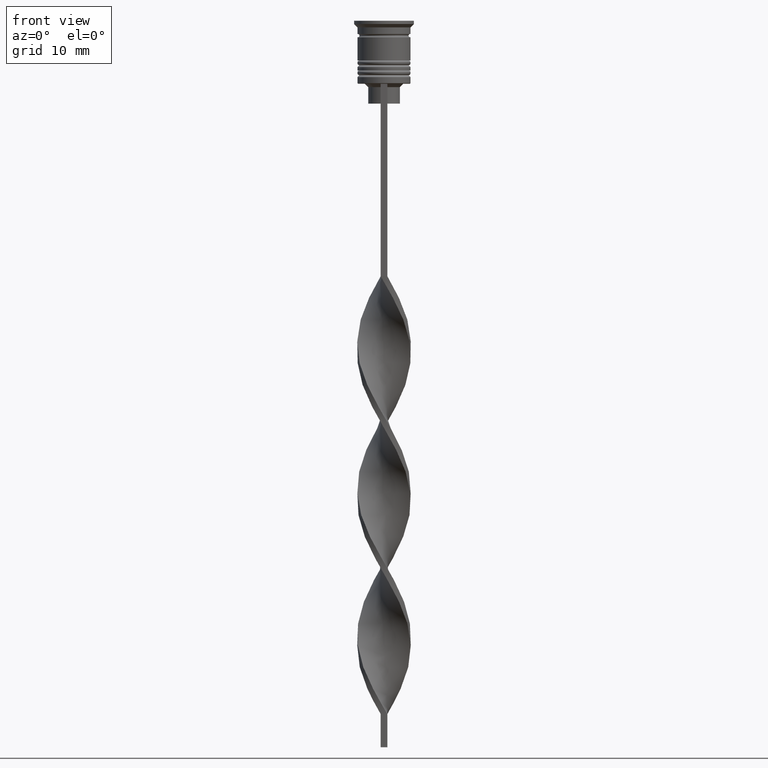
[diagram: clean part render]
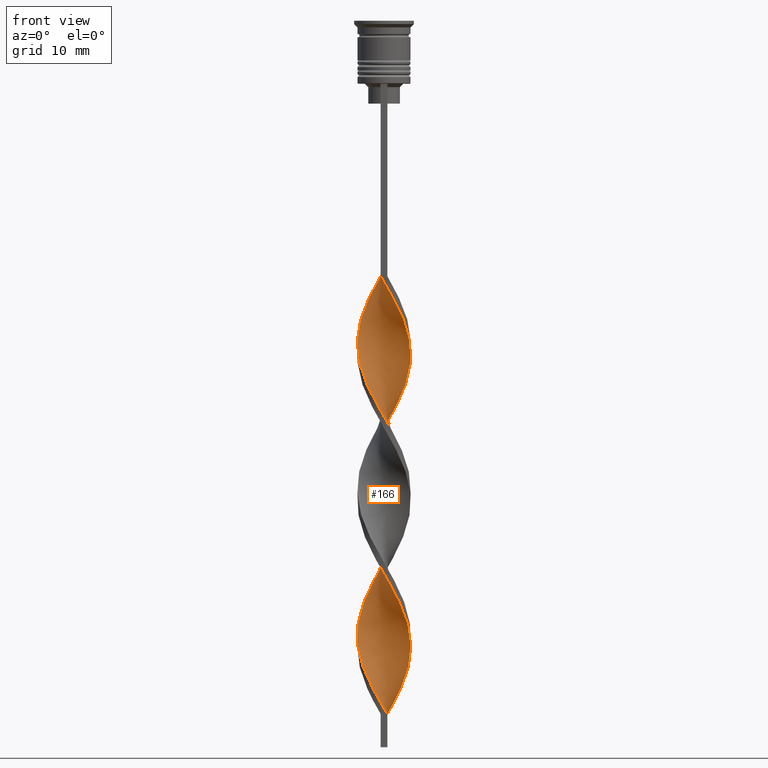
[diagram: same view with one face highlighted and labeled with its STEP entity id]
A machine part, front view. The second image highlights one B-rep face of the part: STEP entity #166.
In plain terms, the highlighted face is a freeform B-spline surface patch.
Its self-contained STEP definition (entity closure, byte-faithful):
#6 = CARTESIAN_POINT ( 'NONE',  ( 0.01431206711095876771, 4.060710991611130360, -61.34615384615383959 ) ) ;
#12 = CARTESIAN_POINT ( 'NONE',  ( 3.910567156264555422, 0.9785011580703162348, -72.34615384615383959 ) ) ;
#14 = CARTESIAN_POINT ( 'NONE',  ( -1.874433786711570127, 3.602232165184604540, -64.73076923076922640 ) ) ;
#16 = CARTESIAN_POINT ( 'NONE',  ( 2.278235258877631786, 3.325604321804800811, -77.42307692307693401 ) ) ;
#28 = CARTESIAN_POINT ( 'NONE',  ( -1.416164675348469792, -3.774185688634723146, -101.1153846153846132 ) ) ;
#31 = CARTESIAN_POINT ( 'NONE',  ( 1.899779198837473038, 3.588929866731988660, -57.96153846153846700 ) ) ;
#33 = CARTESIAN_POINT ( 'NONE',  ( 1.874433786711571459, 3.602232165184603652, -78.26923076923075939 ) ) ;
#54 = CARTESIAN_POINT ( 'NONE',  ( -0.9578955639853689030, -3.946139212084843972, -101.9615384615384670 ) ) ;
#58 = CARTESIAN_POINT ( 'NONE',  ( -3.575967836940203703, 1.860767053977795404, -89.26923076923077360 ) ) ;
#74 = CARTESIAN_POINT ( 'NONE',  ( 2.301620701001679148, 3.309462516590954806, -57.11538461538461320 ) ) ;
#76 = CARTESIAN_POINT ( 'NONE',  ( 3.562762527220391551, 1.885927669512849514, -74.03846153846153300 ) ) ;
#80 = CARTESIAN_POINT ( 'NONE',  ( -3.333769449374405447, -2.318525361317902433, -96.88461538461538680 ) ) ;
#99 = CARTESIAN_POINT ( 'NONE',  ( -0.5000000000000000000, 4.000000000000000000, -82.50000000000000000 ) ) ;
#155 = CARTESIAN_POINT ( 'NONE',  ( -0.5000000000000000000, -4.000000000000000000, -38.50000000000000000 ) ) ;
#156 = CARTESIAN_POINT ( 'NONE',  ( -0.01431206711095789862, -4.060710991611130360, -39.34615384615384670 ) ) ;
#166 = ADVANCED_FACE ( 'NONE', ( #1179 ), #2116, .T. ) ;
#178 = CARTESIAN_POINT ( 'NONE',  ( 4.032828965577023084, 0.4752569063773717239, -51.19230769230768630 ) ) ;
#192 =( BOUNDED_CURVE ( )  B_SPLINE_CURVE ( 2, ( #2807, #2496, #524, #2444, #2790, #1962, #824, #1384, #3615, #3083, #1920, #1085, #539, #2456, #1683, #1317, #2218, #1614, #1037, #3340, #1071, #3027, #2741, #3581, #205, #2513, #1330, #488, #1056, #2188, #2755, #768, #1627, #224, #2201, #783, #3046, #3180, #1423, #1740, #12, #2062, #76, #1703, #1136, #1201, #2829, #2568, #1780, #1158, #3440, #305, #2297, #2335, #3139, #2043, #581, #644, #1441, #3418, #3460, #924, #273, #2271, #1123, #3393, #839, #860, #1406, #600, #2538, #2845, #1760, #883, #28, #54, #2865, #2258, #1979 ),
 .UNSPECIFIED., .F., .T. ) 
 B_SPLINE_CURVE_WITH_KNOTS ( ( 3, 2, 2, 2, 2, 2, 2, 2, 2, 2, 2, 2, 2, 2, 2, 2, 2, 2, 2, 2, 2, 2, 2, 2, 2, 2, 2, 2, 2, 2, 2, 2, 2, 2, 2, 2, 2, 2, 2, 3 ),
 ( 0.000000000000000000, 0.01923076923076923184, 0.03846153846153846367, 0.05769230769230768857, 0.07692307692307692735, 0.09615384615384615918, 0.1153846153846153771, 0.1346153846153846090, 0.1538461538461538547, 0.1730769230769230449, 0.1923076923076923184, 0.2115384615384615363, 0.2307692307692307543, 0.2500000000000000000, 0.2692307692307692180, 0.2884615384615384359, 0.3076923076923077094, 0.3269230769230769273, 0.3461538461538460898, 0.3653846153846153633, 0.3846153846153846367, 0.4038461538461539102, 0.4230769230769230727, 0.4423076923076922906, 0.4615384615384615086, 0.4807692307692307820, 0.5000000000000000000, 0.5192307692307692735, 0.5384615384615384359, 0.5576923076923077094, 0.5769230769230768718, 0.5961538461538461453, 0.6153846153846154188, 0.6346153846153845812, 0.6538461538461538547, 0.6730769230769230171, 0.6923076923076921796, 0.7115384615384615641, 0.7307692307692307265, 0.7500000000000000000 ),
 .UNSPECIFIED. ) 
 CURVE ( )  GEOMETRIC_REPRESENTATION_ITEM ( )  RATIONAL_B_SPLINE_CURVE ( ( 1.000000000000000000, 0.9927088740980539727, 1.000000000000000000, 0.9927088740980539727, 1.000000000000000000, 0.9927088740980539727, 1.000000000000000000, 0.9927088740980539727, 1.000000000000000000, 0.9927088740980539727, 1.000000000000000000, 0.9927088740980539727, 1.000000000000000000, 0.9927088740980539727, 1.000000000000000000, 0.9927088740980539727, 1.000000000000000000, 0.9927088740980539727, 1.000000000000000000, 0.9927088740980539727, 1.000000000000000000, 0.9927088740980539727, 1.000000000000000000, 0.9927088740980539727, 1.000000000000000000, 0.9927088740980539727, 1.000000000000000000, 0.9927088740980539727, 1.000000000000000000, 0.9927088740980539727, 1.000000000000000000, 0.9927088740980539727, 1.000000000000000000, 0.9927088740980539727, 1.000000000000000000, 0.9927088740980539727, 1.000000000000000000, 0.9927088740980539727, 1.000000000000000000, 0.9927088740980539727, 1.000000000000000000, 0.9927088740980539727, 1.000000000000000000, 0.9927088740980539727, 1.000000000000000000, 0.9927088740980539727, 1.000000000000000000, 0.9927088740980539727, 1.000000000000000000, 0.9927088740980539727, 1.000000000000000000, 0.9927088740980539727, 1.000000000000000000, 0.9927088740980539727, 1.000000000000000000, 0.9927088740980539727, 1.000000000000000000, 0.9927088740980539727, 1.000000000000000000, 0.9927088740980539727, 1.000000000000000000, 0.9927088740980539727, 1.000000000000000000, 0.9927088740980539727, 1.000000000000000000, 0.9927088740980539727, 1.000000000000000000, 0.9927088740980539727, 1.000000000000000000, 0.9927088740980539727, 1.000000000000000000, 0.9927088740980539727, 1.000000000000000000, 0.9927088740980539727, 1.000000000000000000, 0.9927088740980539727, 1.000000000000000000, 0.9927088740980539727, 1.000000000000000000 ) ) 
 REPRESENTATION_ITEM ( '' )  );
#205 = CARTESIAN_POINT ( 'NONE',  ( -0.4717917484372064485, -4.003425101847986056, -58.80769230769231370 ) ) ;
#214 = CARTESIAN_POINT ( 'NONE',  ( -0.5000000000000000000, -4.000000000000000000, -38.50000000000000000 ) ) ;
#215 = CARTESIAN_POINT ( 'NONE',  ( 0.5000000000000005551, 4.000000000000000000, -60.50000000000000000 ) ) ;
#224 = CARTESIAN_POINT ( 'NONE',  ( 3.350029810931575813, -2.294968160678093394, -66.42307692307693401 ) ) ;
#236 = CARTESIAN_POINT ( 'NONE',  ( 2.278235258877630010, -3.325604321804802588, -87.57692307692308020 ) ) ;
#243 = CARTESIAN_POINT ( 'NONE',  ( -0.9856879328890445491, -3.939289008388869640, -81.65384615384616041 ) ) ;
#256 = CARTESIAN_POINT ( 'NONE',  ( 0.4999999999999997780, -1.333333333333333481, -104.5000000000000142 ) ) ;
#258 = CARTESIAN_POINT ( 'NONE',  ( -3.910567156264554534, -0.9785011580703186773, -50.34615384615384670 ) ) ;
#273 = CARTESIAN_POINT ( 'NONE',  ( -3.917367414262926673, 0.9509114268274357906, -90.96153846153845279 ) ) ;
#276 = CARTESIAN_POINT ( 'NONE',  ( 2.301620701001679148, 3.309462516590954806, -101.1153846153846132 ) ) ;
#278 = CARTESIAN_POINT ( 'NONE',  ( 1.899779198837473038, 3.588929866731988216, -101.9615384615384670 ) ) ;
#292 = CARTESIAN_POINT ( 'NONE',  ( -2.301620701001681368, -3.309462516590953474, -79.11538461538461320 ) ) ;
#293 = CARTESIAN_POINT ( 'NONE',  ( 0.01431206711095605461, -4.060710991611130360, -59.65384615384615330 ) ) ;
#305 = CARTESIAN_POINT ( 'NONE',  ( -0.01431206711095556715, 4.060710991611130360, -81.65384615384616041 ) ) ;
#307 = CARTESIAN_POINT ( 'NONE',  ( 3.917367414262927561, 0.9509114268274344584, -96.03846153846154721 ) ) ;
#308 = CARTESIAN_POINT ( 'NONE',  ( -0.01431206711095556715, 4.060710991611130360, -81.65384615384616041 ) ) ;
#320 = CARTESIAN_POINT ( 'NONE',  ( 4.029378707462731413, -0.5036723384328416486, -49.50000000000000000 ) ) ;
#328 = CARTESIAN_POINT ( 'NONE',  ( 3.917367414262926673, -0.9509114268274362347, -68.96153846153846700 ) ) ;
#350 = CARTESIAN_POINT ( 'NONE',  ( -2.703462203165886368, 3.029995166449922284, -86.73076923076922640 ) ) ;
#442 = CARTESIAN_POINT ( 'NONE',  ( 3.910567156264554534, -0.9785011580703200096, -48.65384615384615330 ) ) ;
#478 = CARTESIAN_POINT ( 'NONE',  ( 3.575967836940204148, 1.860767053977794516, -53.73076923076923350 ) ) ;
#488 = CARTESIAN_POINT ( 'NONE',  ( 0.9856879328890412184, -3.939289008388869640, -61.34615384615383249 ) ) ;
#489 = CARTESIAN_POINT ( 'NONE',  ( 3.917367414262927561, 0.9509114268274344584, -52.03846153846154010 ) ) ;
#490 = CARTESIAN_POINT ( 'NONE',  ( 2.301620701001679148, 3.309462516590954806, -101.1153846153846132 ) ) ;
#496 = CARTESIAN_POINT ( 'NONE',  ( 1.874433786711570571, -3.602232165184604096, -86.73076923076922640 ) ) ;
#510 = CARTESIAN_POINT ( 'NONE',  ( 3.801905862948830261, 1.426565947277498081, -96.88461538461538680 ) ) ;
#512 = CARTESIAN_POINT ( 'NONE',  ( -4.029378707462731413, -0.5036723384328412045, -49.50000000000000000 ) ) ;
#519 = CARTESIAN_POINT ( 'NONE',  ( -4.031103836519877248, 0.01420771602773772055, -72.34615384615383959 ) ) ;
#524 = CARTESIAN_POINT ( 'NONE',  ( -1.442733565863256961, 3.764109437560429150, -40.19230769230769340 ) ) ;
#528 = CARTESIAN_POINT ( 'NONE',  ( 0.9856879328890441050, 3.939289008388869640, -59.65384615384615330 ) ) ;
#539 = CARTESIAN_POINT ( 'NONE',  ( -4.031103836519878136, -0.01420771602773408804, -48.65384615384615330 ) ) ;
#541 = CARTESIAN_POINT ( 'NONE',  ( -0.01431206711095789862, -4.060710991611130360, -83.34615384615386802 ) ) ;
#551 = CARTESIAN_POINT ( 'NONE',  ( -3.575967836940204148, -1.860767053977794072, -75.73076923076924061 ) ) ;
#563 = CARTESIAN_POINT ( 'NONE',  ( -4.031103836519877248, 0.01420771602773772055, -72.34615384615383959 ) ) ;
#565 = CARTESIAN_POINT ( 'NONE',  ( -3.801905862948830706, 1.426565947277498525, -90.11538461538462741 ) ) ;
#581 = CARTESIAN_POINT ( 'NONE',  ( -2.301620701001678704, 3.309462516590955250, -85.88461538461538680 ) ) ;
#583 = CARTESIAN_POINT ( 'NONE',  ( 3.007903090209047559, -2.683750919871451757, -89.26923076923077360 ) ) ;
#592 = VERTEX_POINT ( 'NONE', #1311 ) ;
#597 = CARTESIAN_POINT ( 'NONE',  ( -0.01431206711095789688, -4.060710991611130360, -39.34615384615384670 ) ) ;
#600 = CARTESIAN_POINT ( 'NONE',  ( -3.333769449374405447, -2.318525361317902878, -96.88461538461538680 ) ) ;
#603 = CARTESIAN_POINT ( 'NONE',  ( 4.031103836519878136, 0.01420771602773273322, -70.65384615384614619 ) ) ;
#626 = CARTESIAN_POINT ( 'NONE',  ( 4.032828965577023084, -0.4752569063773718350, -69.80769230769230660 ) ) ;
#644 = CARTESIAN_POINT ( 'NONE',  ( -2.703462203165886368, 3.029995166449922284, -86.73076923076922640 ) ) ;
#648 = CARTESIAN_POINT ( 'NONE',  ( 2.682036731043692335, 3.048976478424997527, -76.57692307692306599 ) ) ;
#650 = EDGE_CURVE ( 'NONE', #2561, #592, #3573, .T. ) ;
#725 = CARTESIAN_POINT ( 'NONE',  ( 3.333769449374404559, -2.318525361317903322, -46.11538461538462030 ) ) ;
#755 = CARTESIAN_POINT ( 'NONE',  ( 2.682036731043690114, -3.048976478425000636, -44.42307692307692690 ) ) ;
#768 = CARTESIAN_POINT ( 'NONE',  ( 2.703462203165885924, -3.029995166449922728, -64.73076923076922640 ) ) ;
#771 = CARTESIAN_POINT ( 'NONE',  ( 2.703462203165886368, 3.029995166449921840, -100.2692307692307878 ) ) ;
#778 = CARTESIAN_POINT ( 'NONE',  ( 3.910567156264554534, -0.9785011580703200096, -92.65384615384616041 ) ) ;
#783 = CARTESIAN_POINT ( 'NONE',  ( 3.801905862948829373, -1.426565947277500745, -68.11538461538461320 ) ) ;
#787 = CARTESIAN_POINT ( 'NONE',  ( 4.032828965577023084, 0.4752569063773717239, -95.19230769230769340 ) ) ;
#788 = CARTESIAN_POINT ( 'NONE',  ( -3.575967836940203703, 1.860767053977795404, -45.26923076923076650 ) ) ;
#796 = CARTESIAN_POINT ( 'NONE',  ( 1.442733565863258516, 3.764109437560428262, -58.80769230769231370 ) ) ;
#812 = CARTESIAN_POINT ( 'NONE',  ( 3.562762527220391107, -1.885927669512850402, -90.96153846153845279 ) ) ;
#815 = CARTESIAN_POINT ( 'NONE',  ( 0.5000000000000005551, 4.000000000000000000, -104.5000000000000142 ) ) ;
#824 = CARTESIAN_POINT ( 'NONE',  ( -3.026746007048731091, 2.662481663564006951, -43.57692307692307310 ) ) ;
#826 = CARTESIAN_POINT ( 'NONE',  ( 1.416164675348469126, -3.774185688634723590, -85.88461538461538680 ) ) ;
#828 = CARTESIAN_POINT ( 'NONE',  ( -1.874433786711571015, -3.602232165184603652, -56.26923076923076650 ) ) ;
#834 = CARTESIAN_POINT ( 'NONE',  ( -3.917367414262927561, -0.9509114268274349024, -74.03846153846153300 ) ) ;
#839 = CARTESIAN_POINT ( 'NONE',  ( -3.910567156264554534, -0.9785011580703186773, -94.34615384615385381 ) ) ;
#840 = CARTESIAN_POINT ( 'NONE',  ( 0.5000000000000002220, 1.333333333333333481, -104.5000000000000142 ) ) ;
#842 = CARTESIAN_POINT ( 'NONE',  ( 0.01431206711095605461, -4.060710991611130360, -103.6538461538461604 ) ) ;
#853 = CARTESIAN_POINT ( 'NONE',  ( 2.682036731043689670, -3.048976478425000636, -88.42307692307693401 ) ) ;
#860 = CARTESIAN_POINT ( 'NONE',  ( -3.791755605066377655, -1.453329977707796816, -95.19230769230769340 ) ) ;
#864 = CARTESIAN_POINT ( 'NONE',  ( 1.442733565863258516, 3.764109437560428262, -58.80769230769231370 ) ) ;
#866 = CARTESIAN_POINT ( 'NONE',  ( -1.416164675348469792, -3.774185688634723146, -101.1153846153846132 ) ) ;
#883 = CARTESIAN_POINT ( 'NONE',  ( -1.874433786711570793, -3.602232165184603652, -100.2692307692307878 ) ) ;
#887 = CARTESIAN_POINT ( 'NONE',  ( -0.4717917484372064485, -4.003425101847986056, -102.8076923076923208 ) ) ;
#907 = CARTESIAN_POINT ( 'NONE',  ( 3.801905862948829373, -1.426565947277500745, -68.11538461538462741 ) ) ;
#920 = CARTESIAN_POINT ( 'NONE',  ( 3.791755605066377655, -1.453329977707797260, -47.80769230769230660 ) ) ;
#924 = CARTESIAN_POINT ( 'NONE',  ( -3.801905862948830706, 1.426565947277498525, -90.11538461538462741 ) ) ;
#929 = CARTESIAN_POINT ( 'NONE',  ( 0.4999999999999994449, -4.000000000000000000, -60.50000000000000000 ) ) ;
#1009 = ORIENTED_EDGE ( 'NONE', *, *, #2779, .T. ) ;
#1011 = CARTESIAN_POINT ( 'NONE',  ( 3.007903090209047559, -2.683750919871451757, -45.26923076923076650 ) ) ;
#1012 = ORIENTED_EDGE ( 'NONE', *, *, #2314, .F. ) ;
#1037 = CARTESIAN_POINT ( 'NONE',  ( -3.007903090209048003, -2.683750919871450868, -53.73076923076923350 ) ) ;
#1050 = DIRECTION ( 'NONE',  ( 0.000000000000000000, 1.000000000000000000, 0.000000000000000000 ) ) ;
#1056 = CARTESIAN_POINT ( 'NONE',  ( 1.442733565863255851, -3.764109437560429594, -62.19230769230769340 ) ) ;
#1066 = CARTESIAN_POINT ( 'NONE',  ( 3.791755605066377655, -1.453329977707797260, -91.80769230769230660 ) ) ;
#1071 = CARTESIAN_POINT ( 'NONE',  ( -2.278235258877631342, -3.325604321804801256, -55.42307692307691980 ) ) ;
#1085 = CARTESIAN_POINT ( 'NONE',  ( -4.032828965577023972, 0.4752569063773721680, -47.80769230769230660 ) ) ;
#1088 = CARTESIAN_POINT ( 'NONE',  ( 3.350029810931577590, 2.294968160678091174, -98.57692307692310862 ) ) ;
#1107 = CARTESIAN_POINT ( 'NONE',  ( -0.5000000000000000000, -4.000000000000000000, -82.50000000000000000 ) ) ;
#1109 = CARTESIAN_POINT ( 'NONE',  ( -3.007903090209048003, -2.683750919871450868, -53.73076923076923350 ) ) ;
#1115 = CARTESIAN_POINT ( 'NONE',  ( -3.910567156264554534, 0.9785011580703212308, -70.65384615384614619 ) ) ;
#1123 = CARTESIAN_POINT ( 'NONE',  ( -4.031103836519878136, -0.01420771602773408804, -92.65384615384616041 ) ) ;
#1125 = CARTESIAN_POINT ( 'NONE',  ( 3.026746007048731979, 2.662481663564005618, -99.42307692307691980 ) ) ;
#1136 = CARTESIAN_POINT ( 'NONE',  ( 3.007903090209048891, 2.683750919871450868, -75.73076923076924061 ) ) ;
#1139 = CARTESIAN_POINT ( 'NONE',  ( 0.9578955639853675708, -3.946139212084843972, -85.03846153846153300 ) ) ;
#1140 = CARTESIAN_POINT ( 'NONE',  ( 0.4999999999999994449, -4.000000000000000000, -104.5000000000000142 ) ) ;
#1155 = CARTESIAN_POINT ( 'NONE',  ( 0.9578955639853675708, -3.946139212084844416, -41.03846153846154010 ) ) ;
#1158 = CARTESIAN_POINT ( 'NONE',  ( 0.9578955639853693471, 3.946139212084843972, -79.96153846153846700 ) ) ;
#1161 = CARTESIAN_POINT ( 'NONE',  ( -4.032828965577023972, -0.4752569063773701696, -73.19230769230769340 ) ) ;
#1162 = VERTEX_POINT ( 'NONE', #815 ) ;
#1164 = CARTESIAN_POINT ( 'NONE',  ( -4.032828965577023972, 0.4752569063773721680, -91.80769230769230660 ) ) ;
#1179 = FACE_OUTER_BOUND ( 'NONE', #2287, .T. ) ;
#1185 = CARTESIAN_POINT ( 'NONE',  ( -4.031103836519878136, -0.01420771602773408804, -92.65384615384616041 ) ) ;
#1198 = CARTESIAN_POINT ( 'NONE',  ( 3.801905862948830261, 1.426565947277498081, -52.88461538461537970 ) ) ;
#1201 = CARTESIAN_POINT ( 'NONE',  ( 2.682036731043692779, 3.048976478424997527, -76.57692307692306599 ) ) ;
#1205 = CARTESIAN_POINT ( 'NONE',  ( -3.007903090209048003, -2.683750919871450868, -97.73076923076922640 ) ) ;
#1273 = B_SPLINE_CURVE_WITH_KNOTS ( 'NONE', 3,
 ( #3616, #840, #256, #2516 ),
 .UNSPECIFIED., .F., .F.,
 ( 4, 4 ),
 ( 0.000000000000000000, 1.000000000000000000 ),
 .UNSPECIFIED. ) ;
#1311 = CARTESIAN_POINT ( 'NONE',  ( -0.5000000000000000000, 4.000000000000000000, -38.50000000000000000 ) ) ;
#1317 = CARTESIAN_POINT ( 'NONE',  ( -3.791755605066377655, -1.453329977707796816, -51.19230769230768630 ) ) ;
#1330 = CARTESIAN_POINT ( 'NONE',  ( 0.4999999999999994449, -4.000000000000000000, -60.50000000000000000 ) ) ;
#1333 = CARTESIAN_POINT ( 'NONE',  ( -0.9856879328890421066, 3.939289008388870084, -39.34615384615384670 ) ) ;
#1342 = CARTESIAN_POINT ( 'NONE',  ( -3.007903090209047559, 2.683750919871451757, -67.26923076923077360 ) ) ;
#1360 = CARTESIAN_POINT ( 'NONE',  ( 4.032828965577023084, 0.4752569063773717239, -95.19230769230769340 ) ) ;
#1369 = CARTESIAN_POINT ( 'NONE',  ( 0.01431206711095876771, 4.060710991611130360, -61.34615384615383249 ) ) ;
#1378 = CARTESIAN_POINT ( 'NONE',  ( -0.4717917484372037285, 4.003425101847986944, -62.19230769230769340 ) ) ;
#1384 = CARTESIAN_POINT ( 'NONE',  ( -3.350029810931576701, 2.294968160678092506, -44.42307692307692690 ) ) ;
#1387 = CARTESIAN_POINT ( 'NONE',  ( -4.029378707462731413, 0.5036723384328422037, -71.50000000000001421 ) ) ;
#1388 = CARTESIAN_POINT ( 'NONE',  ( -3.791755605066377655, -1.453329977707796816, -51.19230769230768630 ) ) ;
#1395 = CARTESIAN_POINT ( 'NONE',  ( -1.874433786711570127, 3.602232165184604540, -64.73076923076921219 ) ) ;
#1406 = CARTESIAN_POINT ( 'NONE',  ( -3.562762527220391551, -1.885927669512849070, -96.03846153846154721 ) ) ;
#1409 = CARTESIAN_POINT ( 'NONE',  ( 3.350029810931577590, 2.294968160678091618, -98.57692307692310862 ) ) ;
#1414 = ORIENTED_EDGE ( 'NONE', *, *, #650, .T. ) ;
#1417 = CARTESIAN_POINT ( 'NONE',  ( 0.4717917484372050052, -4.003425101847986944, -84.19230769230769340 ) ) ;
#1423 = CARTESIAN_POINT ( 'NONE',  ( 4.031103836519878136, 0.01420771602773273322, -70.65384615384614619 ) ) ;
#1425 = CARTESIAN_POINT ( 'NONE',  ( 0.4717917484372050052, -4.003425101847986944, -84.19230769230769340 ) ) ;
#1426 = CARTESIAN_POINT ( 'NONE',  ( 3.910567156264555422, 0.9785011580703162348, -72.34615384615383959 ) ) ;
#1441 = CARTESIAN_POINT ( 'NONE',  ( -3.026746007048731091, 2.662481663564006951, -87.57692307692308020 ) ) ;
#1443 = CARTESIAN_POINT ( 'NONE',  ( -0.9578955639853662385, 3.946139212084843972, -63.03846153846154010 ) ) ;
#1445 = CARTESIAN_POINT ( 'NONE',  ( -2.278235258877631342, -3.325604321804801256, -99.42307692307691980 ) ) ;
#1461 = CARTESIAN_POINT ( 'NONE',  ( 4.032828965577023084, 0.4752569063773717239, -51.19230769230768630 ) ) ;
#1469 = CARTESIAN_POINT ( 'NONE',  ( 3.026746007048730647, -2.662481663564007839, -65.57692307692308020 ) ) ;
#1488 = CARTESIAN_POINT ( 'NONE',  ( -4.029378707462731413, -0.5036723384328412045, -93.49999999999998579 ) ) ;
#1508 = CARTESIAN_POINT ( 'NONE',  ( 4.029378707462731413, 0.5036723384328406494, -71.50000000000000000 ) ) ;
#1522 = VECTOR ( 'NONE', #1050, 1000.000000000000000 ) ;
#1569 = EDGE_CURVE ( 'NONE', #2561, #1162, #2981, .T. ) ;
#1570 = CARTESIAN_POINT ( 'NONE',  ( 0.9578955639853675708, -3.946139212084843972, -41.03846153846154010 ) ) ;
#1582 = CARTESIAN_POINT ( 'NONE',  ( 4.031103836519878136, -0.01420771602773549663, -50.34615384615384670 ) ) ;
#1614 = CARTESIAN_POINT ( 'NONE',  ( -3.333769449374405447, -2.318525361317902878, -52.88461538461538680 ) ) ;
#1622 = CARTESIAN_POINT ( 'NONE',  ( 3.562762527220391107, -1.885927669512850402, -90.96153846153845279 ) ) ;
#1627 = CARTESIAN_POINT ( 'NONE',  ( 3.026746007048730647, -2.662481663564007839, -65.57692307692308020 ) ) ;
#1630 = CARTESIAN_POINT ( 'NONE',  ( 3.350029810931577590, 2.294968160678091174, -54.57692307692308731 ) ) ;
#1631 = CARTESIAN_POINT ( 'NONE',  ( -3.917367414262926673, 0.9509114268274357906, -46.96153846153845990 ) ) ;
#1641 = CARTESIAN_POINT ( 'NONE',  ( -2.703462203165886812, -3.029995166449921840, -78.26923076923075939 ) ) ;
#1651 = CARTESIAN_POINT ( 'NONE',  ( -1.442733565863260736, -3.764109437560427818, -80.80769230769230660 ) ) ;
#1653 = CARTESIAN_POINT ( 'NONE',  ( -1.442733565863256961, 3.764109437560429150, -40.19230769230769340 ) ) ;
#1661 = CARTESIAN_POINT ( 'NONE',  ( -1.899779198837473482, -3.588929866731988216, -79.96153846153846700 ) ) ;
#1669 = CARTESIAN_POINT ( 'NONE',  ( 0.9856879328890441050, 3.939289008388869640, -103.6538461538461462 ) ) ;
#1678 = CARTESIAN_POINT ( 'NONE',  ( -1.442733565863260736, -3.764109437560427818, -80.80769230769230660 ) ) ;
#1683 = CARTESIAN_POINT ( 'NONE',  ( -3.910567156264554534, -0.9785011580703186773, -50.34615384615384670 ) ) ;
#1685 = CARTESIAN_POINT ( 'NONE',  ( -3.007903090209047559, 2.683750919871451757, -67.26923076923077360 ) ) ;
#1686 = CARTESIAN_POINT ( 'NONE',  ( 3.801905862948830261, 1.426565947277498081, -96.88461538461538680 ) ) ;
#1694 = CARTESIAN_POINT ( 'NONE',  ( -0.9856879328890444381, -3.939289008388870084, -81.65384615384616041 ) ) ;
#1703 = CARTESIAN_POINT ( 'NONE',  ( 3.333769449374406335, 2.318525361317901101, -74.88461538461538680 ) ) ;
#1705 = CARTESIAN_POINT ( 'NONE',  ( -2.703462203165886812, -3.029995166449921840, -78.26923076923077360 ) ) ;
#1707 = CARTESIAN_POINT ( 'NONE',  ( 1.442733565863255851, -3.764109437560429594, -62.19230769230769340 ) ) ;
#1723 = CARTESIAN_POINT ( 'NONE',  ( 4.031103836519878136, -0.01420771602773549663, -94.34615384615385381 ) ) ;
#1736 = CARTESIAN_POINT ( 'NONE',  ( 0.4717917484372050052, -4.003425101847986944, -40.19230769230769340 ) ) ;
#1740 = CARTESIAN_POINT ( 'NONE',  ( 4.029378707462731413, 0.5036723384328407604, -71.50000000000001421 ) ) ;
#1743 = CARTESIAN_POINT ( 'NONE',  ( 1.416164675348472235, 3.774185688634722702, -79.11538461538461320 ) ) ;
#1757 = CARTESIAN_POINT ( 'NONE',  ( 4.031103836519878136, -0.01420771602773549663, -50.34615384615384670 ) ) ;
#1760 = CARTESIAN_POINT ( 'NONE',  ( -2.278235258877631342, -3.325604321804801256, -99.42307692307691980 ) ) ;
#1766 = CARTESIAN_POINT ( 'NONE',  ( -0.9578955639853687920, -3.946139212084844416, -57.96153846153846700 ) ) ;
#1778 = CARTESIAN_POINT ( 'NONE',  ( 1.874433786711570571, -3.602232165184604096, -42.73076923076923350 ) ) ;
#1780 = CARTESIAN_POINT ( 'NONE',  ( 1.416164675348472235, 3.774185688634722702, -79.11538461538461320 ) ) ;
#1784 = CARTESIAN_POINT ( 'NONE',  ( -0.4717917484372064485, -4.003425101847986056, -58.80769230769231370 ) ) ;
#1857 = CARTESIAN_POINT ( 'NONE',  ( 3.562762527220391107, -1.885927669512850402, -46.96153846153845990 ) ) ;
#1904 = CARTESIAN_POINT ( 'NONE',  ( 4.029378707462731413, -0.5036723384328416486, -49.50000000000000000 ) ) ;
#1906 = CARTESIAN_POINT ( 'NONE',  ( 1.442733565863258516, 3.764109437560428262, -102.8076923076923208 ) ) ;
#1913 = CARTESIAN_POINT ( 'NONE',  ( 4.029378707462731413, -0.5036723384328416486, -93.49999999999998579 ) ) ;
#1920 = CARTESIAN_POINT ( 'NONE',  ( -3.917367414262926673, 0.9509114268274357906, -46.96153846153845990 ) ) ;
#1924 = CARTESIAN_POINT ( 'NONE',  ( -3.562762527220391107, 1.885927669512850846, -68.96153846153846700 ) ) ;
#1926 = CARTESIAN_POINT ( 'NONE',  ( 0.9856879328890439940, 3.939289008388870084, -103.6538461538461604 ) ) ;
#1937 = CARTESIAN_POINT ( 'NONE',  ( -3.562762527220391107, 1.885927669512850846, -68.96153846153846700 ) ) ;
#1948 = CARTESIAN_POINT ( 'NONE',  ( 2.703462203165886368, 3.029995166449921840, -100.2692307692307878 ) ) ;
#1949 = CARTESIAN_POINT ( 'NONE',  ( -3.350029810931576701, 2.294968160678092506, -44.42307692307691980 ) ) ;
#1956 = CARTESIAN_POINT ( 'NONE',  ( -4.032828965577023972, -0.4752569063773701696, -73.19230769230770761 ) ) ;
#1962 = CARTESIAN_POINT ( 'NONE',  ( -2.703462203165886368, 3.029995166449922284, -42.73076923076923350 ) ) ;
#1965 = CARTESIAN_POINT ( 'NONE',  ( 3.333769449374404559, -2.318525361317903322, -90.11538461538462741 ) ) ;
#1966 = CARTESIAN_POINT ( 'NONE',  ( -1.416164675348469792, -3.774185688634723146, -57.11538461538461320 ) ) ;
#1974 = CARTESIAN_POINT ( 'NONE',  ( -3.801905862948831150, -1.426565947277496083, -74.88461538461538680 ) ) ;
#1979 = CARTESIAN_POINT ( 'NONE',  ( 0.4999999999999994449, -4.000000000000000000, -104.5000000000000142 ) ) ;
#1982 = CARTESIAN_POINT ( 'NONE',  ( -0.9856879328890421066, 3.939289008388870084, -83.34615384615386802 ) ) ;
#2003 = CARTESIAN_POINT ( 'NONE',  ( 3.026746007048731979, 2.662481663564005618, -55.42307692307691980 ) ) ;
#2027 = CARTESIAN_POINT ( 'NONE',  ( 3.007903090209048891, 2.683750919871450868, -75.73076923076924061 ) ) ;
#2039 = CARTESIAN_POINT ( 'NONE',  ( -0.5000000000000000000, -4.000000000000000000, -38.50000000000000000 ) ) ;
#2043 = CARTESIAN_POINT ( 'NONE',  ( -1.899779198837471705, 3.588929866731989549, -85.03846153846153300 ) ) ;
#2046 = CARTESIAN_POINT ( 'NONE',  ( -3.350029810931576701, 2.294968160678092506, -88.42307692307693401 ) ) ;
#2059 = CARTESIAN_POINT ( 'NONE',  ( 2.278235258877630010, -3.325604321804802588, -43.57692307692307310 ) ) ;
#2062 = CARTESIAN_POINT ( 'NONE',  ( 3.791755605066378987, 1.453329977707795484, -73.19230769230769340 ) ) ;
#2071 = CARTESIAN_POINT ( 'NONE',  ( 2.301620701001678704, -3.309462516590955250, -63.88461538461538680 ) ) ;
#2116 =( BOUNDED_SURFACE ( )  B_SPLINE_SURFACE ( 1, 2, ( 
 ( #2039, #597, #1736, #1155, #3197, #1778, #2059, #2294, #3478, #3177, #2649, #920, #3415, #320, #1757, #1461, #2316, #1198, #3437, #3153, #2886, #2907, #74, #2785, #796, #2267, #215, #6, #1378, #3093, #2529, #1395, #3644, #3354, #1342, #3596, #1937, #2507, #1115, #3371, #519, #1956, #834, #1974, #551, #3062, #3078, #1641, #3389, #1661, #1678, #1694, #2768, #2821, #1417, #3623, #2472, #496, #236, #853, #3023, #2197, #1622, #1066, #778, #1913, #3036, #1360, #2490, #1686, #2205, #1409, #2811, #771, #490, #278, #1906, #1926, #3291 ),
 ( #2541, #1333, #1653, #3326, #3015, #2743, #2462, #1949, #788, #3053, #1631, #3030, #2760, #512, #258, #1388, #2520, #3636, #1109, #2244, #3363, #828, #1966, #1766, #1784, #293, #929, #2848, #1707, #2832, #2071, #2895, #1469, #2869, #3185, #907, #328, #626, #603, #1508, #1426, #2572, #3103, #2915, #2027, #648, #16, #33, #1743, #2634, #3142, #308, #99, #1982, #2262, #2595, #2339, #350, #3160, #2046, #58, #565, #2555, #1164, #1185, #1488, #2617, #3422, #2322, #80, #1205, #3464, #1445, #3444, #866, #3380, #887, #842, #1140 ) ),
 .UNSPECIFIED., .F., .F., .F. ) 
 B_SPLINE_SURFACE_WITH_KNOTS ( ( 2, 2 ),
 ( 3, 2, 2, 2, 2, 2, 2, 2, 2, 2, 2, 2, 2, 2, 2, 2, 2, 2, 2, 2, 2, 2, 2, 2, 2, 2, 2, 2, 2, 2, 2, 2, 2, 2, 2, 2, 2, 2, 2, 3 ),
 ( 0.000000000000000000, 1.000000000000000000 ),
 ( 0.000000000000000000, 0.01923076923076923184, 0.03846153846153846367, 0.05769230769230769551, 0.07692307692307692735, 0.09615384615384615918, 0.1153846153846153910, 0.1346153846153846090, 0.1538461538461538547, 0.1730769230769230727, 0.1923076923076923184, 0.2115384615384615363, 0.2307692307692307820, 0.2500000000000000000, 0.2692307692307692180, 0.2884615384615384359, 0.3076923076923077094, 0.3269230769230769273, 0.3461538461538461453, 0.3653846153846153633, 0.3846153846153846367, 0.4038461538461538547, 0.4230769230769230727, 0.4423076923076922906, 0.4615384615384615641, 0.4807692307692307820, 0.5000000000000000000, 0.5192307692307692735, 0.5384615384615384359, 0.5576923076923077094, 0.5769230769230768718, 0.5961538461538461453, 0.6153846153846154188, 0.6346153846153845812, 0.6538461538461538547, 0.6730769230769231282, 0.6923076923076922906, 0.7115384615384615641, 0.7307692307692307265, 0.7500000000000000000 ),
 .UNSPECIFIED. ) 
 GEOMETRIC_REPRESENTATION_ITEM ( )  RATIONAL_B_SPLINE_SURFACE ( (
 ( 1.000000000000000000, 0.9927088740980539727, 1.000000000000000000, 0.9927088740980539727, 1.000000000000000000, 0.9927088740980539727, 1.000000000000000000, 0.9927088740980539727, 1.000000000000000000, 0.9927088740980539727, 1.000000000000000000, 0.9927088740980539727, 1.000000000000000000, 0.9927088740980539727, 1.000000000000000000, 0.9927088740980539727, 1.000000000000000000, 0.9927088740980539727, 1.000000000000000000, 0.9927088740980539727, 1.000000000000000000, 0.9927088740980539727, 1.000000000000000000, 0.9927088740980539727, 1.000000000000000000, 0.9927088740980539727, 1.000000000000000000, 0.9927088740980539727, 1.000000000000000000, 0.9927088740980539727, 1.000000000000000000, 0.9927088740980539727, 1.000000000000000000, 0.9927088740980539727, 1.000000000000000000, 0.9927088740980539727, 1.000000000000000000, 0.9927088740980539727, 1.000000000000000000, 0.9927088740980539727, 1.000000000000000000, 0.9927088740980539727, 1.000000000000000000, 0.9927088740980539727, 1.000000000000000000, 0.9927088740980539727, 1.000000000000000000, 0.9927088740980539727, 1.000000000000000000, 0.9927088740980539727, 1.000000000000000000, 0.9927088740980539727, 1.000000000000000000, 0.9927088740980539727, 1.000000000000000000, 0.9927088740980539727, 1.000000000000000000, 0.9927088740980539727, 1.000000000000000000, 0.9927088740980539727, 1.000000000000000000, 0.9927088740980539727, 1.000000000000000000, 0.9927088740980539727, 1.000000000000000000, 0.9927088740980539727, 1.000000000000000000, 0.9927088740980539727, 1.000000000000000000, 0.9927088740980539727, 1.000000000000000000, 0.9927088740980539727, 1.000000000000000000, 0.9927088740980539727, 1.000000000000000000, 0.9927088740980539727, 1.000000000000000000, 0.9927088740980539727, 1.000000000000000000),
 ( 1.000000000000000000, 0.9927088740980539727, 1.000000000000000000, 0.9927088740980539727, 1.000000000000000000, 0.9927088740980539727, 1.000000000000000000, 0.9927088740980539727, 1.000000000000000000, 0.9927088740980539727, 1.000000000000000000, 0.9927088740980539727, 1.000000000000000000, 0.9927088740980539727, 1.000000000000000000, 0.9927088740980539727, 1.000000000000000000, 0.9927088740980539727, 1.000000000000000000, 0.9927088740980539727, 1.000000000000000000, 0.9927088740980539727, 1.000000000000000000, 0.9927088740980539727, 1.000000000000000000, 0.9927088740980539727, 1.000000000000000000, 0.9927088740980539727, 1.000000000000000000, 0.9927088740980539727, 1.000000000000000000, 0.9927088740980539727, 1.000000000000000000, 0.9927088740980539727, 1.000000000000000000, 0.9927088740980539727, 1.000000000000000000, 0.9927088740980539727, 1.000000000000000000, 0.9927088740980539727, 1.000000000000000000, 0.9927088740980539727, 1.000000000000000000, 0.9927088740980539727, 1.000000000000000000, 0.9927088740980539727, 1.000000000000000000, 0.9927088740980539727, 1.000000000000000000, 0.9927088740980539727, 1.000000000000000000, 0.9927088740980539727, 1.000000000000000000, 0.9927088740980539727, 1.000000000000000000, 0.9927088740980539727, 1.000000000000000000, 0.9927088740980539727, 1.000000000000000000, 0.9927088740980539727, 1.000000000000000000, 0.9927088740980539727, 1.000000000000000000, 0.9927088740980539727, 1.000000000000000000, 0.9927088740980539727, 1.000000000000000000, 0.9927088740980539727, 1.000000000000000000, 0.9927088740980539727, 1.000000000000000000, 0.9927088740980539727, 1.000000000000000000, 0.9927088740980539727, 1.000000000000000000, 0.9927088740980539727, 1.000000000000000000, 0.9927088740980539727, 1.000000000000000000) ) ) 
 REPRESENTATION_ITEM ( '' )  SURFACE ( )  );
#2173 = CARTESIAN_POINT ( 'NONE',  ( -0.5000000000000000000, -4.000000000000000000, -38.50000000000000000 ) ) ;
#2188 = CARTESIAN_POINT ( 'NONE',  ( 1.899779198837470373, -3.588929866731989993, -63.03846153846154010 ) ) ;
#2189 = CARTESIAN_POINT ( 'NONE',  ( 1.416164675348469126, -3.774185688634723590, -41.88461538461537970 ) ) ;
#2197 = CARTESIAN_POINT ( 'NONE',  ( 3.333769449374405003, -2.318525361317902878, -90.11538461538462741 ) ) ;
#2201 = CARTESIAN_POINT ( 'NONE',  ( 3.575967836940203703, -1.860767053977795404, -67.26923076923077360 ) ) ;
#2205 = CARTESIAN_POINT ( 'NONE',  ( 3.575967836940204148, 1.860767053977794516, -97.73076923076922640 ) ) ;
#2218 = CARTESIAN_POINT ( 'NONE',  ( -3.562762527220391551, -1.885927669512849070, -52.03846153846154010 ) ) ;
#2222 = CARTESIAN_POINT ( 'NONE',  ( -1.416164675348468904, 3.774185688634723590, -63.88461538461538680 ) ) ;
#2243 = CARTESIAN_POINT ( 'NONE',  ( -2.682036731043689226, 3.048976478425001524, -66.42307692307693401 ) ) ;
#2244 = CARTESIAN_POINT ( 'NONE',  ( -2.682036731043690558, -3.048976478424999303, -54.57692307692308731 ) ) ;
#2258 = CARTESIAN_POINT ( 'NONE',  ( 0.01431206711095605461, -4.060710991611130360, -103.6538461538461462 ) ) ;
#2260 = CARTESIAN_POINT ( 'NONE',  ( 4.029378707462731413, -0.5036723384328416486, -93.50000000000000000 ) ) ;
#2262 = CARTESIAN_POINT ( 'NONE',  ( -1.442733565863256961, 3.764109437560429150, -84.19230769230769340 ) ) ;
#2267 = CARTESIAN_POINT ( 'NONE',  ( 0.9856879328890439940, 3.939289008388870084, -59.65384615384615330 ) ) ;
#2271 = CARTESIAN_POINT ( 'NONE',  ( -4.032828965577023972, 0.4752569063773721680, -91.80769230769230660 ) ) ;
#2274 = CARTESIAN_POINT ( 'NONE',  ( 2.682036731043690114, -3.048976478425000636, -88.42307692307691980 ) ) ;
#2287 = EDGE_LOOP ( 'NONE', ( #1414, #1009, #1012, #3447 ) ) ;
#2294 = CARTESIAN_POINT ( 'NONE',  ( 2.682036731043689670, -3.048976478425000636, -44.42307692307691980 ) ) ;
#2297 = CARTESIAN_POINT ( 'NONE',  ( -0.5000000000000000000, 4.000000000000000000, -82.50000000000000000 ) ) ;
#2314 = EDGE_CURVE ( 'NONE', #1162, #3207, #1273, .T. ) ;
#2316 = CARTESIAN_POINT ( 'NONE',  ( 3.917367414262927561, 0.9509114268274344584, -52.03846153846154010 ) ) ;
#2322 = CARTESIAN_POINT ( 'NONE',  ( -3.562762527220391551, -1.885927669512849070, -96.03846153846154721 ) ) ;
#2335 = CARTESIAN_POINT ( 'NONE',  ( -0.9856879328890421066, 3.939289008388869640, -83.34615384615386802 ) ) ;
#2339 = CARTESIAN_POINT ( 'NONE',  ( -2.301620701001678704, 3.309462516590955250, -85.88461538461538680 ) ) ;
#2413 = CARTESIAN_POINT ( 'NONE',  ( 1.874433786711570349, -3.602232165184604096, -42.73076923076923350 ) ) ;
#2444 = CARTESIAN_POINT ( 'NONE',  ( -1.899779198837471705, 3.588929866731989549, -41.03846153846154010 ) ) ;
#2456 = CARTESIAN_POINT ( 'NONE',  ( -4.029378707462731413, -0.5036723384328412045, -49.50000000000000000 ) ) ;
#2462 = CARTESIAN_POINT ( 'NONE',  ( -3.026746007048731091, 2.662481663564006951, -43.57692307692307310 ) ) ;
#2472 = CARTESIAN_POINT ( 'NONE',  ( 1.416164675348469126, -3.774185688634723590, -85.88461538461538680 ) ) ;
#2490 = CARTESIAN_POINT ( 'NONE',  ( 3.917367414262927561, 0.9509114268274344584, -96.03846153846154721 ) ) ;
#2496 = CARTESIAN_POINT ( 'NONE',  ( -0.9856879328890421066, 3.939289008388869640, -39.34615384615384670 ) ) ;
#2499 = CARTESIAN_POINT ( 'NONE',  ( -3.333769449374404115, 2.318525361317905098, -68.11538461538461320 ) ) ;
#2507 = CARTESIAN_POINT ( 'NONE',  ( -3.791755605066377655, 1.453329977707796816, -69.80769230769230660 ) ) ;
#2513 = CARTESIAN_POINT ( 'NONE',  ( 0.01431206711095605461, -4.060710991611130360, -59.65384615384615330 ) ) ;
#2516 = CARTESIAN_POINT ( 'NONE',  ( 0.4999999999999994449, -4.000000000000000000, -104.5000000000000142 ) ) ;
#2518 = CARTESIAN_POINT ( 'NONE',  ( 3.791755605066377655, -1.453329977707797260, -91.80769230769230660 ) ) ;
#2520 = CARTESIAN_POINT ( 'NONE',  ( -3.562762527220391551, -1.885927669512849070, -52.03846153846154010 ) ) ;
#2529 = CARTESIAN_POINT ( 'NONE',  ( -1.416164675348468904, 3.774185688634723590, -63.88461538461538680 ) ) ;
#2538 = CARTESIAN_POINT ( 'NONE',  ( -3.007903090209048003, -2.683750919871450868, -97.73076923076922640 ) ) ;
#2540 = CARTESIAN_POINT ( 'NONE',  ( -1.899779198837473482, -3.588929866731988660, -79.96153846153846700 ) ) ;
#2541 = CARTESIAN_POINT ( 'NONE',  ( -0.5000000000000000000, 4.000000000000000000, -38.50000000000000000 ) ) ;
#2554 = CARTESIAN_POINT ( 'NONE',  ( 2.278235258877630010, -3.325604321804802588, -87.57692307692308020 ) ) ;
#2555 = CARTESIAN_POINT ( 'NONE',  ( -3.917367414262926673, 0.9509114268274357906, -90.96153846153845279 ) ) ;
#2561 = VERTEX_POINT ( 'NONE', #155 ) ;
#2568 = CARTESIAN_POINT ( 'NONE',  ( 1.874433786711571237, 3.602232165184603652, -78.26923076923077360 ) ) ;
#2571 = CARTESIAN_POINT ( 'NONE',  ( -2.278235258877629565, 3.325604321804802588, -65.57692307692308020 ) ) ;
#2572 = CARTESIAN_POINT ( 'NONE',  ( 3.791755605066378987, 1.453329977707795484, -73.19230769230770761 ) ) ;
#2595 = CARTESIAN_POINT ( 'NONE',  ( -1.899779198837471705, 3.588929866731989105, -85.03846153846153300 ) ) ;
#2617 = CARTESIAN_POINT ( 'NONE',  ( -3.910567156264554534, -0.9785011580703186773, -94.34615384615385381 ) ) ;
#2634 = CARTESIAN_POINT ( 'NONE',  ( 0.9578955639853692361, 3.946139212084844416, -79.96153846153846700 ) ) ;
#2649 = CARTESIAN_POINT ( 'NONE',  ( 3.562762527220391107, -1.885927669512850402, -46.96153846153845990 ) ) ;
#2695 = CARTESIAN_POINT ( 'NONE',  ( 2.278235258877630010, -3.325604321804802588, -43.57692307692307310 ) ) ;
#2738 = CARTESIAN_POINT ( 'NONE',  ( 0.4999999999999994449, -4.000000000000000000, -104.5000000000000142 ) ) ;
#2741 = CARTESIAN_POINT ( 'NONE',  ( -1.416164675348469792, -3.774185688634723146, -57.11538461538461320 ) ) ;
#2743 = CARTESIAN_POINT ( 'NONE',  ( -2.703462203165886368, 3.029995166449922284, -42.73076923076923350 ) ) ;
#2755 = CARTESIAN_POINT ( 'NONE',  ( 2.301620701001678704, -3.309462516590955250, -63.88461538461538680 ) ) ;
#2760 = CARTESIAN_POINT ( 'NONE',  ( -4.031103836519878136, -0.01420771602773408804, -48.65384615384615330 ) ) ;
#2768 = CARTESIAN_POINT ( 'NONE',  ( -0.5000000000000000000, -4.000000000000000000, -82.50000000000000000 ) ) ;
#2777 = CARTESIAN_POINT ( 'NONE',  ( 3.575967836940204148, 1.860767053977794516, -97.73076923076922640 ) ) ;
#2779 = EDGE_CURVE ( 'NONE', #592, #3207, #192, .T. ) ;
#2785 = CARTESIAN_POINT ( 'NONE',  ( 1.899779198837473038, 3.588929866731988216, -57.96153846153846700 ) ) ;
#2790 = CARTESIAN_POINT ( 'NONE',  ( -2.301620701001678704, 3.309462516590955250, -41.88461538461537970 ) ) ;
#2793 = CARTESIAN_POINT ( 'NONE',  ( 0.5000000000000005551, 4.000000000000000000, -104.5000000000000142 ) ) ;
#2807 = CARTESIAN_POINT ( 'NONE',  ( -0.5000000000000000000, 4.000000000000000000, -38.50000000000000000 ) ) ;
#2811 = CARTESIAN_POINT ( 'NONE',  ( 3.026746007048731979, 2.662481663564005618, -99.42307692307691980 ) ) ;
#2821 = CARTESIAN_POINT ( 'NONE',  ( -0.01431206711095789688, -4.060710991611130360, -83.34615384615386802 ) ) ;
#2829 = CARTESIAN_POINT ( 'NONE',  ( 2.278235258877631786, 3.325604321804800811, -77.42307692307693401 ) ) ;
#2831 = CARTESIAN_POINT ( 'NONE',  ( -3.026746007048732423, -2.662481663564005174, -77.42307692307693401 ) ) ;
#2832 = CARTESIAN_POINT ( 'NONE',  ( 1.899779198837470373, -3.588929866731989549, -63.03846153846153300 ) ) ;
#2845 = CARTESIAN_POINT ( 'NONE',  ( -2.682036731043691002, -3.048976478424999303, -98.57692307692310862 ) ) ;
#2847 = CARTESIAN_POINT ( 'NONE',  ( -3.801905862948831150, -1.426565947277496083, -74.88461538461538680 ) ) ;
#2848 = CARTESIAN_POINT ( 'NONE',  ( 0.9856879328890411074, -3.939289008388870084, -61.34615384615383959 ) ) ;
#2865 = CARTESIAN_POINT ( 'NONE',  ( -0.4717917484372064485, -4.003425101847986056, -102.8076923076923208 ) ) ;
#2869 = CARTESIAN_POINT ( 'NONE',  ( 3.350029810931575813, -2.294968160678093394, -66.42307692307694822 ) ) ;
#2886 = CARTESIAN_POINT ( 'NONE',  ( 3.026746007048731979, 2.662481663564005618, -55.42307692307691980 ) ) ;
#2895 = CARTESIAN_POINT ( 'NONE',  ( 2.703462203165885924, -3.029995166449922728, -64.73076923076921219 ) ) ;
#2907 = CARTESIAN_POINT ( 'NONE',  ( 2.703462203165886368, 3.029995166449921840, -56.26923076923076650 ) ) ;
#2915 = CARTESIAN_POINT ( 'NONE',  ( 3.333769449374406335, 2.318525361317901101, -74.88461538461538680 ) ) ;
#2981 =( BOUNDED_CURVE ( )  B_SPLINE_CURVE ( 2, ( #2173, #156, #2985, #1570, #2189, #2413, #2695, #755, #1011, #725, #1857, #3305, #442, #1904, #1582, #178, #489, #3014, #478, #1630, #2003, #3396, #3633, #31, #864, #528, #3102, #1369, #3344, #1443, #2222, #14, #2571, #2243, #1685, #2499, #1924, #3362, #3617, #1387, #563, #1161, #3049, #2847, #3085, #3122, #2831, #1705, #292, #2540, #1651, #243, #1107, #541, #1425, #1139, #826, #3653, #2554, #2274, #583, #1965, #812, #2518, #3325, #2260, #1723, #787, #307, #510, #2777, #1088, #1125, #1948, #276, #3379, #3070, #1669, #2793 ),
 .UNSPECIFIED., .F., .T. ) 
 B_SPLINE_CURVE_WITH_KNOTS ( ( 3, 2, 2, 2, 2, 2, 2, 2, 2, 2, 2, 2, 2, 2, 2, 2, 2, 2, 2, 2, 2, 2, 2, 2, 2, 2, 2, 2, 2, 2, 2, 2, 2, 2, 2, 2, 2, 2, 2, 3 ),
 ( 0.000000000000000000, 0.01923076923076923184, 0.03846153846153846367, 0.05769230769230768857, 0.07692307692307692735, 0.09615384615384615918, 0.1153846153846153771, 0.1346153846153846090, 0.1538461538461538547, 0.1730769230769230449, 0.1923076923076923184, 0.2115384615384615363, 0.2307692307692307543, 0.2500000000000000000, 0.2692307692307692180, 0.2884615384615384359, 0.3076923076923077094, 0.3269230769230769273, 0.3461538461538460898, 0.3653846153846153633, 0.3846153846153846367, 0.4038461538461539102, 0.4230769230769230727, 0.4423076923076922906, 0.4615384615384615086, 0.4807692307692307820, 0.5000000000000000000, 0.5192307692307692735, 0.5384615384615384359, 0.5576923076923077094, 0.5769230769230768718, 0.5961538461538461453, 0.6153846153846154188, 0.6346153846153845812, 0.6538461538461538547, 0.6730769230769230171, 0.6923076923076921796, 0.7115384615384615641, 0.7307692307692307265, 0.7500000000000000000 ),
 .UNSPECIFIED. ) 
 CURVE ( )  GEOMETRIC_REPRESENTATION_ITEM ( )  RATIONAL_B_SPLINE_CURVE ( ( 1.000000000000000000, 0.9927088740980539727, 1.000000000000000000, 0.9927088740980539727, 1.000000000000000000, 0.9927088740980539727, 1.000000000000000000, 0.9927088740980539727, 1.000000000000000000, 0.9927088740980539727, 1.000000000000000000, 0.9927088740980539727, 1.000000000000000000, 0.9927088740980539727, 1.000000000000000000, 0.9927088740980539727, 1.000000000000000000, 0.9927088740980539727, 1.000000000000000000, 0.9927088740980539727, 1.000000000000000000, 0.9927088740980539727, 1.000000000000000000, 0.9927088740980539727, 1.000000000000000000, 0.9927088740980539727, 1.000000000000000000, 0.9927088740980539727, 1.000000000000000000, 0.9927088740980539727, 1.000000000000000000, 0.9927088740980539727, 1.000000000000000000, 0.9927088740980539727, 1.000000000000000000, 0.9927088740980539727, 1.000000000000000000, 0.9927088740980539727, 1.000000000000000000, 0.9927088740980539727, 1.000000000000000000, 0.9927088740980539727, 1.000000000000000000, 0.9927088740980539727, 1.000000000000000000, 0.9927088740980539727, 1.000000000000000000, 0.9927088740980539727, 1.000000000000000000, 0.9927088740980539727, 1.000000000000000000, 0.9927088740980539727, 1.000000000000000000, 0.9927088740980539727, 1.000000000000000000, 0.9927088740980539727, 1.000000000000000000, 0.9927088740980539727, 1.000000000000000000, 0.9927088740980539727, 1.000000000000000000, 0.9927088740980539727, 1.000000000000000000, 0.9927088740980539727, 1.000000000000000000, 0.9927088740980539727, 1.000000000000000000, 0.9927088740980539727, 1.000000000000000000, 0.9927088740980539727, 1.000000000000000000, 0.9927088740980539727, 1.000000000000000000, 0.9927088740980539727, 1.000000000000000000, 0.9927088740980539727, 1.000000000000000000, 0.9927088740980539727, 1.000000000000000000 ) ) 
 REPRESENTATION_ITEM ( '' )  );
#2985 = CARTESIAN_POINT ( 'NONE',  ( 0.4717917484372050052, -4.003425101847986944, -40.19230769230769340 ) ) ;
#3014 = CARTESIAN_POINT ( 'NONE',  ( 3.801905862948830261, 1.426565947277498081, -52.88461538461538680 ) ) ;
#3015 = CARTESIAN_POINT ( 'NONE',  ( -2.301620701001678704, 3.309462516590955250, -41.88461538461537970 ) ) ;
#3023 = CARTESIAN_POINT ( 'NONE',  ( 3.007903090209047559, -2.683750919871451757, -89.26923076923077360 ) ) ;
#3027 = CARTESIAN_POINT ( 'NONE',  ( -1.874433786711570793, -3.602232165184603652, -56.26923076923076650 ) ) ;
#3030 = CARTESIAN_POINT ( 'NONE',  ( -4.032828965577023972, 0.4752569063773721680, -47.80769230769230660 ) ) ;
#3036 = CARTESIAN_POINT ( 'NONE',  ( 4.031103836519878136, -0.01420771602773549663, -94.34615384615385381 ) ) ;
#3046 = CARTESIAN_POINT ( 'NONE',  ( 3.917367414262926673, -0.9509114268274362347, -68.96153846153846700 ) ) ;
#3049 = CARTESIAN_POINT ( 'NONE',  ( -3.917367414262927561, -0.9509114268274349024, -74.03846153846153300 ) ) ;
#3053 = CARTESIAN_POINT ( 'NONE',  ( -3.801905862948830706, 1.426565947277498525, -46.11538461538462741 ) ) ;
#3062 = CARTESIAN_POINT ( 'NONE',  ( -3.350029810931578478, -2.294968160678088953, -76.57692307692306599 ) ) ;
#3070 = CARTESIAN_POINT ( 'NONE',  ( 1.442733565863258516, 3.764109437560428262, -102.8076923076923208 ) ) ;
#3078 = CARTESIAN_POINT ( 'NONE',  ( -3.026746007048732423, -2.662481663564005174, -77.42307692307693401 ) ) ;
#3083 = CARTESIAN_POINT ( 'NONE',  ( -3.801905862948830706, 1.426565947277498525, -46.11538461538462030 ) ) ;
#3085 = CARTESIAN_POINT ( 'NONE',  ( -3.575967836940204148, -1.860767053977794072, -75.73076923076924061 ) ) ;
#3093 = CARTESIAN_POINT ( 'NONE',  ( -0.9578955639853662385, 3.946139212084844416, -63.03846153846153300 ) ) ;
#3102 = CARTESIAN_POINT ( 'NONE',  ( 0.5000000000000005551, 4.000000000000000000, -60.50000000000000000 ) ) ;
#3103 = CARTESIAN_POINT ( 'NONE',  ( 3.562762527220391551, 1.885927669512849514, -74.03846153846153300 ) ) ;
#3122 = CARTESIAN_POINT ( 'NONE',  ( -3.350029810931578478, -2.294968160678088509, -76.57692307692306599 ) ) ;
#3139 = CARTESIAN_POINT ( 'NONE',  ( -1.442733565863256961, 3.764109437560429150, -84.19230769230769340 ) ) ;
#3142 = CARTESIAN_POINT ( 'NONE',  ( 0.4717917484372087800, 4.003425101847986056, -80.80769230769230660 ) ) ;
#3153 = CARTESIAN_POINT ( 'NONE',  ( 3.350029810931577590, 2.294968160678091618, -54.57692307692308731 ) ) ;
#3160 = CARTESIAN_POINT ( 'NONE',  ( -3.026746007048731091, 2.662481663564006951, -87.57692307692308020 ) ) ;
#3177 = CARTESIAN_POINT ( 'NONE',  ( 3.333769449374405003, -2.318525361317902878, -46.11538461538462741 ) ) ;
#3180 = CARTESIAN_POINT ( 'NONE',  ( 4.032828965577023084, -0.4752569063773718350, -69.80769230769230660 ) ) ;
#3185 = CARTESIAN_POINT ( 'NONE',  ( 3.575967836940203703, -1.860767053977795404, -67.26923076923077360 ) ) ;
#3197 = CARTESIAN_POINT ( 'NONE',  ( 1.416164675348469126, -3.774185688634723590, -41.88461538461537970 ) ) ;
#3207 = VERTEX_POINT ( 'NONE', #2738 ) ;
#3291 = CARTESIAN_POINT ( 'NONE',  ( 0.5000000000000005551, 4.000000000000000000, -104.5000000000000142 ) ) ;
#3305 = CARTESIAN_POINT ( 'NONE',  ( 3.791755605066377655, -1.453329977707797260, -47.80769230769230660 ) ) ;
#3325 = CARTESIAN_POINT ( 'NONE',  ( 3.910567156264554534, -0.9785011580703200096, -92.65384615384616041 ) ) ;
#3326 = CARTESIAN_POINT ( 'NONE',  ( -1.899779198837471705, 3.588929866731989105, -41.03846153846154010 ) ) ;
#3340 = CARTESIAN_POINT ( 'NONE',  ( -2.682036731043691002, -3.048976478424999303, -54.57692307692308731 ) ) ;
#3344 = CARTESIAN_POINT ( 'NONE',  ( -0.4717917484372037285, 4.003425101847986944, -62.19230769230769340 ) ) ;
#3354 = CARTESIAN_POINT ( 'NONE',  ( -2.682036731043688782, 3.048976478425001524, -66.42307692307694822 ) ) ;
#3362 = CARTESIAN_POINT ( 'NONE',  ( -3.791755605066377655, 1.453329977707796816, -69.80769230769230660 ) ) ;
#3363 = CARTESIAN_POINT ( 'NONE',  ( -2.278235258877631342, -3.325604321804801256, -55.42307692307691980 ) ) ;
#3371 = CARTESIAN_POINT ( 'NONE',  ( -4.029378707462731413, 0.5036723384328422037, -71.50000000000000000 ) ) ;
#3379 = CARTESIAN_POINT ( 'NONE',  ( 1.899779198837473038, 3.588929866731988660, -101.9615384615384670 ) ) ;
#3380 = CARTESIAN_POINT ( 'NONE',  ( -0.9578955639853687920, -3.946139212084844416, -101.9615384615384670 ) ) ;
#3389 = CARTESIAN_POINT ( 'NONE',  ( -2.301620701001681368, -3.309462516590953474, -79.11538461538461320 ) ) ;
#3393 = CARTESIAN_POINT ( 'NONE',  ( -4.029378707462731413, -0.5036723384328412045, -93.50000000000000000 ) ) ;
#3396 = CARTESIAN_POINT ( 'NONE',  ( 2.703462203165886368, 3.029995166449921840, -56.26923076923076650 ) ) ;
#3415 = CARTESIAN_POINT ( 'NONE',  ( 3.910567156264554534, -0.9785011580703200096, -48.65384615384615330 ) ) ;
#3418 = CARTESIAN_POINT ( 'NONE',  ( -3.350029810931576701, 2.294968160678092506, -88.42307692307691980 ) ) ;
#3422 = CARTESIAN_POINT ( 'NONE',  ( -3.791755605066377655, -1.453329977707796816, -95.19230769230769340 ) ) ;
#3437 = CARTESIAN_POINT ( 'NONE',  ( 3.575967836940204148, 1.860767053977794516, -53.73076923076923350 ) ) ;
#3440 = CARTESIAN_POINT ( 'NONE',  ( 0.4717917484372087800, 4.003425101847986056, -80.80769230769230660 ) ) ;
#3444 = CARTESIAN_POINT ( 'NONE',  ( -1.874433786711571015, -3.602232165184603652, -100.2692307692307878 ) ) ;
#3447 = ORIENTED_EDGE ( 'NONE', *, *, #1569, .F. ) ;
#3460 = CARTESIAN_POINT ( 'NONE',  ( -3.575967836940203703, 1.860767053977795404, -89.26923076923077360 ) ) ;
#3464 = CARTESIAN_POINT ( 'NONE',  ( -2.682036731043690558, -3.048976478424999303, -98.57692307692310862 ) ) ;
#3478 = CARTESIAN_POINT ( 'NONE',  ( 3.007903090209047559, -2.683750919871451757, -45.26923076923076650 ) ) ;
#3573 = LINE ( 'NONE', #214, #1522 ) ;
#3581 = CARTESIAN_POINT ( 'NONE',  ( -0.9578955639853689030, -3.946139212084843972, -57.96153846153846700 ) ) ;
#3596 = CARTESIAN_POINT ( 'NONE',  ( -3.333769449374404559, 2.318525361317904654, -68.11538461538462741 ) ) ;
#3615 = CARTESIAN_POINT ( 'NONE',  ( -3.575967836940203703, 1.860767053977795404, -45.26923076923076650 ) ) ;
#3616 = CARTESIAN_POINT ( 'NONE',  ( 0.5000000000000005551, 4.000000000000000000, -104.5000000000000142 ) ) ;
#3617 = CARTESIAN_POINT ( 'NONE',  ( -3.910567156264554534, 0.9785011580703212308, -70.65384615384614619 ) ) ;
#3623 = CARTESIAN_POINT ( 'NONE',  ( 0.9578955639853675708, -3.946139212084844416, -85.03846153846153300 ) ) ;
#3633 = CARTESIAN_POINT ( 'NONE',  ( 2.301620701001679148, 3.309462516590954806, -57.11538461538461320 ) ) ;
#3636 = CARTESIAN_POINT ( 'NONE',  ( -3.333769449374405447, -2.318525361317902433, -52.88461538461537970 ) ) ;
#3644 = CARTESIAN_POINT ( 'NONE',  ( -2.278235258877629565, 3.325604321804802588, -65.57692307692308020 ) ) ;
#3653 = CARTESIAN_POINT ( 'NONE',  ( 1.874433786711570349, -3.602232165184604096, -86.73076923076922640 ) ) ;